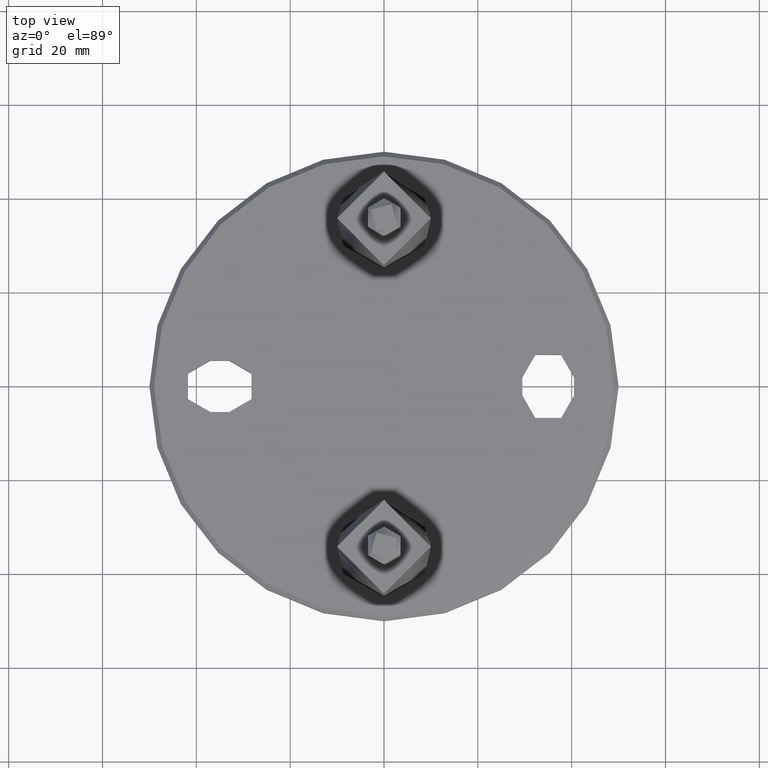
[diagram: clean part render]
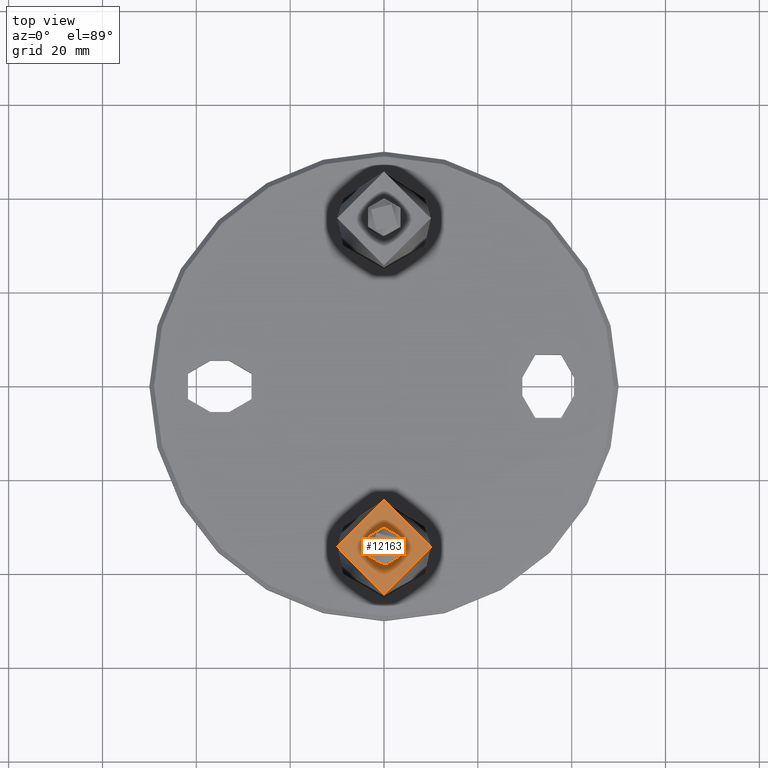
[diagram: same view with one face highlighted and labeled with its STEP entity id]
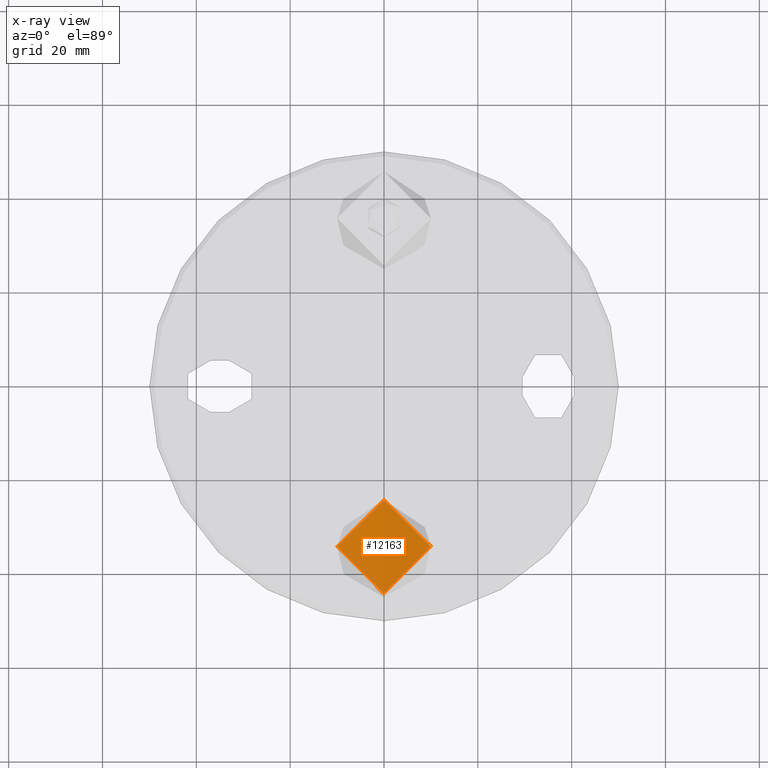
[diagram: x-ray of the same camera — body ghosted, the highlighted face saturated]
A machine part, top view. The second image highlights one B-rep face of the part: STEP entity #12163.
The next image is the same camera in x-ray: the body ghosted, the highlighted face saturated — about 0% of this face is hidden behind the body in this view.
In plain terms, the highlighted cylindrical surface (partial cylindrical patch) has radius 21.2 mm, axis along (0, 1, -0).
Its self-contained STEP definition (entity closure, byte-faithful):
#203 = ORIENTED_EDGE ( 'NONE', *, *, #15122, .T. ) ;
#516 = CARTESIAN_POINT ( 'NONE',  ( 9.982414581929930400, 46.99725035317056400, 0.6795817556389306400 ) ) ;
#568 = CARTESIAN_POINT ( 'NONE',  ( 8.964253897605766900, 46.48773758420086500, -4.443967780737021500 ) ) ;
#625 = CARTESIAN_POINT ( 'NONE',  ( 0.6710340642420658000, 44.50000000000002100, -10.00000000000000400 ) ) ;
#726 = CARTESIAN_POINT ( 'NONE',  ( 7.946700934037632900, 46.04542448166517200, 1.060978647405205000 ) ) ;
#911 = CARTESIAN_POINT ( 'NONE',  ( -0.6710340642420703500, 44.50000000000000000, -9.999999999999998200 ) ) ;
#964 = CARTESIAN_POINT ( 'NONE',  ( -9.870155520532206200, 46.93766143655276600, 1.639681426772311200 ) ) ;
#966 = CARTESIAN_POINT ( 'NONE',  ( 4.469110848030649800, 44.97431208322698400, -8.951756303271849900 ) ) ;
#990 = CARTESIAN_POINT ( 'NONE',  ( -5.839409913531705200, 45.31918769600405700, 5.474354043041676800 ) ) ;
#995 = CARTESIAN_POINT ( 'NONE',  ( 6.097048751048081500, 45.39396812799017800, 7.932912277434814600 ) ) ;
#1019 = CARTESIAN_POINT ( 'NONE',  ( -8.670077701673784900, 46.34999724163485300, 5.024729755145505900 ) ) ;
#1048 = CARTESIAN_POINT ( 'NONE',  ( 4.019930523539358100, 44.88329065571777900, 6.921638728661008600 ) ) ;
#1085 = CARTESIAN_POINT ( 'NONE',  ( -9.346966378711949000, 46.67124106123582500, -3.569254565059489300 ) ) ;
#1637 = VERTEX_POINT ( 'NONE', #9508 ) ;
#1643 = CARTESIAN_POINT ( 'NONE',  ( 5.300468791646417300, 45.17142248634212400, 8.485845364758796800 ) ) ;
#1807 = CARTESIAN_POINT ( 'NONE',  ( 8.954484395985863500, 46.48317448152611300, 4.463650138016776100 ) ) ;
#1962 = CARTESIAN_POINT ( 'NONE',  ( 6.924108717032224200, 45.66218820251172900, 4.015592442816007700 ) ) ;
#1971 = CARTESIAN_POINT ( 'NONE',  ( 9.483190860956497700, 46.73721560809785600, -3.239967857514311600 ) ) ;
#2124 = CARTESIAN_POINT ( 'NONE',  ( 7.948068961608544900, 46.04597323479185200, -1.053060681145291600 ) ) ;
#2173 = CARTESIAN_POINT ( 'NONE',  ( 2.080262128454891900, 44.60079738458542700, -7.729258207646523700 ) ) ;
#2189 = CARTESIAN_POINT ( 'NONE',  ( -9.932088329190991200, 46.96993190506123000, -1.337674638786005900 ) ) ;
#2218 = CARTESIAN_POINT ( 'NONE',  ( -7.740670532928314500, 45.96337466075911500, 2.087624345647437300 ) ) ;
#2228 = CARTESIAN_POINT ( 'NONE',  ( 3.238085567351746400, 44.73962003743160700, 9.484155180939842100 ) ) ;
#2254 = CARTESIAN_POINT ( 'NONE',  ( -4.469624339306767200, 44.97444407463622400, 8.951438951896889800 ) ) ;
#2258 = CARTESIAN_POINT ( 'NONE',  ( 1.301042606982605300E-015, 44.50000000000001400, -10.00000000000000200 ) ) ;
#2277 = CARTESIAN_POINT ( 'NONE',  ( 5.022853073952959800, 45.10151269576292100, 8.653159878084377300 ) ) ;
#2296 = CARTESIAN_POINT ( 'NONE',  ( 6.786908770510334100, 45.61514836500627700, -4.243320249564356500 ) ) ;
#2311 = CARTESIAN_POINT ( 'NONE',  ( -2.643370765987185200, 44.66305753939220600, 9.649892476246456900 ) ) ;
#2333 = CARTESIAN_POINT ( 'NONE',  ( -6.501648725235453300, 45.52100930370571800, 4.668596399855251100 ) ) ;
#2362 = CARTESIAN_POINT ( 'NONE',  ( -9.740840076068991500, 46.87020039986192200, 2.285729597577682800 ) ) ;
#2387 = CARTESIAN_POINT ( 'NONE',  ( 6.358058911530736000, 45.47360351489875500, 4.882921647729439500 ) ) ;
#2431 = CARTESIAN_POINT ( 'NONE',  ( 0.0000000000000000000, 65.69999999999998900, 15.00000000000000000 ) ) ;
#2452 = CARTESIAN_POINT ( 'NONE',  ( -5.285364833860087200, 45.16837107819286200, -6.011047975210184200 ) ) ;
#3081 = CARTESIAN_POINT ( 'NONE',  ( 4.170323546639157700, 44.91195116759663400, -9.094828785750630500 ) ) ;
#3134 = CARTESIAN_POINT ( 'NONE',  ( 3.263228641391706700, 44.74362555683444500, -9.475303443008348500 ) ) ;
#3186 = CARTESIAN_POINT ( 'NONE',  ( 7.538899342453330400, 45.87975883678201700, -6.602055655766884400 ) ) ;
#3254 = CARTESIAN_POINT ( 'NONE',  ( -4.467945790593070400, 44.96707144381373700, -8.970271105152134400 ) ) ;
#3287 = CARTESIAN_POINT ( 'NONE',  ( -3.564983628642337500, 44.79618061007140300, -7.180901118691163100 ) ) ;
#3346 = CARTESIAN_POINT ( 'NONE',  ( 7.791840223846911300, 45.98375370405052100, -1.832323710539754700 ) ) ;
#3393 = CARTESIAN_POINT ( 'NONE',  ( 6.923065522502464700, 45.66182623570400500, -4.017414146606949300 ) ) ;
#3429 = CARTESIAN_POINT ( 'NONE',  ( 0.5233955155464958800, 44.50482535184077200, 7.987240395986136200 ) ) ;
#3446 = CARTESIAN_POINT ( 'NONE',  ( 1.057376813885607200, 44.52014363093380900, -7.947037112781933900 ) ) ;
#3465 = CARTESIAN_POINT ( 'NONE',  ( 1.305867936509205900, 44.53763576834389000, 9.920004263371618300 ) ) ;
#3470 = CARTESIAN_POINT ( 'NONE',  ( 2.637974639928488700, 44.65473981049649400, -9.668325632801604300 ) ) ;
#3495 = CARTESIAN_POINT ( 'NONE',  ( 1.049801174281113500, 44.52437040543672000, 7.935229644027000300 ) ) ;
#3528 = CARTESIAN_POINT ( 'NONE',  ( -6.627858110228785900, 45.55692945934244200, 7.515623325812176100 ) ) ;
#3564 = CARTESIAN_POINT ( 'NONE',  ( 7.999846470075008000, 46.06731153197319600, -0.5296391970087568300 ) ) ;
#3579 = CARTESIAN_POINT ( 'NONE',  ( -8.977166742959017400, 46.49246610309258900, 4.454461449407234300 ) ) ;
#3613 = CARTESIAN_POINT ( 'NONE',  ( -6.024766308394668500, 45.37056871456503900, -5.288587148533993700 ) ) ;
#3664 = CARTESIAN_POINT ( 'NONE',  ( -7.947242598539991900, 46.04564437177190000, 1.057114368380220400 ) ) ;
#3776 = EDGE_LOOP ( 'NONE', ( #15254 ) ) ;
#4304 = CARTESIAN_POINT ( 'NONE',  ( 9.105824283226917600, 46.55467447853733600, -4.146207819050889800 ) ) ;
#4352 = CARTESIAN_POINT ( 'NONE',  ( 8.643691189815093900, 46.34139012169166000, 5.039202909953545800 ) ) ;
#4521 = CARTESIAN_POINT ( 'NONE',  ( -5.848381953352692600, 45.32072929997159600, -8.118014525222385200 ) ) ;
#4594 = CARTESIAN_POINT ( 'NONE',  ( 4.448730584124480600, 44.96993660368571700, 8.961865044067748100 ) ) ;
#4671 = CARTESIAN_POINT ( 'NONE',  ( 3.561652206488780800, 44.79555137439260900, -7.182747971165472500 ) ) ;
#4711 = CARTESIAN_POINT ( 'NONE',  ( 6.790161462787334100, 45.61625746323582600, 4.238002659787723800 ) ) ;
#4740 = CARTESIAN_POINT ( 'NONE',  ( -1.340954340740363700, 44.53227347118250600, 9.932095520693579300 ) ) ;
#4772 = CARTESIAN_POINT ( 'NONE',  ( 4.150656756408730000, 44.90798879209465600, 9.103880925181767800 ) ) ;
#4794 = CARTESIAN_POINT ( 'NONE',  ( -9.735572841129643600, 46.86747285120679200, -2.308150657904440200 ) ) ;
#4824 = CARTESIAN_POINT ( 'NONE',  ( -6.346805666809564700, 45.47160314627671300, 4.877102246928885200 ) ) ;
#4835 = FACE_BOUND ( 'NONE', #3776, .T. ) ;
#4841 = CARTESIAN_POINT ( 'NONE',  ( 4.874022891345005900, 45.06684368493757400, -6.349183181187184400 ) ) ;
#4860 = CARTESIAN_POINT ( 'NONE',  ( -3.270760802825266400, 44.75143248648965500, 9.455683876922680800 ) ) ;
#4901 = CARTESIAN_POINT ( 'NONE',  ( -6.354564512688107000, 45.47244755900175800, -4.888167589712392000 ) ) ;
#5407 = EDGE_CURVE ( 'NONE', #15256, #15256, #9135, .T. ) ;
#5564 = CARTESIAN_POINT ( 'NONE',  ( 7.948877540109214700, 46.04273951036299900, -6.101819572144875400 ) ) ;
#5674 = CARTESIAN_POINT ( 'NONE',  ( 9.472294849355286300, 46.73177138179068600, 3.270813786289182200 ) ) ;
#5726 = CARTESIAN_POINT ( 'NONE',  ( 9.864538830927537900, 46.93470091502101800, 1.673526740888290300 ) ) ;
#5767 = EDGE_LOOP ( 'NONE', ( #203 ) ) ;
#5786 = CARTESIAN_POINT ( 'NONE',  ( -6.110589595650704800, 45.39805380392230900, -7.922442904969484400 ) ) ;
#5886 = CARTESIAN_POINT ( 'NONE',  ( 7.483755059323406100, 45.86455460791448500, -2.839275379970025900 ) ) ;
#5931 = CARTESIAN_POINT ( 'NONE',  ( 4.878909776184770000E-016, 44.50000000000001400, -8.000000000000001800 ) ) ;
#6011 = CARTESIAN_POINT ( 'NONE',  ( -9.653127112434358300, 46.82491060101073500, -2.631725452114392900 ) ) ;
#6039 = CARTESIAN_POINT ( 'NONE',  ( 5.289902162564145800, 45.16699716640967900, 6.024181415992583100 ) ) ;
#6074 = CARTESIAN_POINT ( 'NONE',  ( -8.664137667471560900, 46.34728847207557600, -5.035304216957190900 ) ) ;
#6092 = DIRECTION ( 'NONE',  ( -1.000000000000000000, 0.0000000000000000000, 0.0000000000000000000 ) ) ;
#6103 = CARTESIAN_POINT ( 'NONE',  ( 2.593418853257765600, 44.65354927127494700, 7.586083449563222600 ) ) ;
#6136 = CARTESIAN_POINT ( 'NONE',  ( -9.468641170223662600, 46.73170042201368800, 3.233088247809586600 ) ) ;
#6219 = CARTESIAN_POINT ( 'NONE',  ( 6.029561497851136500, 45.37189978386175000, 5.283768992482768200 ) ) ;
#6673 = B_SPLINE_CURVE_WITH_KNOTS ( 'NONE', 3,
 ( #13466, #911, #12241, #8300, #13525, #10812, #8350, #3254, #12089, #4521, #5786, #13375, #14616, #7078, #15872, #12302, #8548, #6074, #7296, #1085, #9913, #6011, #4794, #2189, #11076, #7416, #14884, #16084, #964, #2362, #11198, #6136, #16192, #3579, #1019, #14832, #13627, #9853, #7356, #3528, #9793, #8672, #12421, #2254, #16138, #14944, #4860, #2311, #12366, #4740, #8613, #11020, #13577, #3465, #11138, #13681, #2228, #4772, #4594, #2277, #1643, #11538, #995, #10887, #9670, #8244, #11863, #13314, #4352, #1807, #14391, #5674, #10693, #5726, #10807, #516, #9485, #10748, #9538, #9382, #10637, #1971, #4304, #568, #15770, #6863, #5564, #3186, #14502, #15662, #8294, #11918, #966, #3081, #3134, #3470, #14561, #625, #2258 ),
 .UNSPECIFIED., .T., .F.,
 ( 4, 2, 2, 2, 2, 2, 2, 2, 2, 2, 2, 2, 2, 2, 2, 2, 2, 2, 2, 2, 2, 2, 2, 2, 2, 2, 2, 2, 2, 2, 2, 2, 2, 2, 2, 2, 2, 2, 1, 2, 2, 2, 2, 2, 2, 2, 2, 2, 2, 4 ),
 ( 0.0000000000000000000, 0.001982588497940418900, 0.002973882746910628600, 0.003965176995880837800, 0.005947765493821255400, 0.006939059742791460300, 0.007930353991761665200, 0.008921648240731869200, 0.009912942489702075000, 0.01189553098764248300, 0.01288682523661268400, 0.01387811948558288800, 0.01586070798352329600, 0.01685200223249350100, 0.01784329648146370700, 0.01883459073043391000, 0.01982588497940411200, 0.02180847347734452000, 0.02279976772631472600, 0.02379106197528492800, 0.02577365047322533300, 0.02676494472219554200, 0.02775623897116574800, 0.02874753322013595300, 0.02973882746910615600, 0.03172141596704657100, 0.03271271021601678000, 0.03370400446498698900, 0.03568659296292740100, 0.03667788721189760300, 0.03766918146086780500, 0.03866047570983800800, 0.03965176995880821000, 0.04163435845674862100, 0.04262565270571882400, 0.04361694695468902600, 0.04559953545262944400, 0.04659082970159964000, 0.04758212395056984900, 0.04857341819954005800, 0.04956471244851026100, 0.05154730094645067200, 0.05253859519542088100, 0.05352988944439109100, 0.05551247794233150200, 0.05749506644027191400, 0.05848636068924211600, 0.05947765493821231100, 0.06146024343615272300, 0.06344283193409312700 ),
 .UNSPECIFIED. ) ;
#6863 = CARTESIAN_POINT ( 'NONE',  ( 8.487868160873848200, 46.27233338483753800, -5.297198140837264400 ) ) ;
#7078 = CARTESIAN_POINT ( 'NONE',  ( -7.300951022269778400, 45.79537651172479000, -6.840990230692230300 ) ) ;
#7168 = CARTESIAN_POINT ( 'NONE',  ( 4.665340713526976700, 45.01853165201345800, -6.503982036825620500 ) ) ;
#7224 = CARTESIAN_POINT ( 'NONE',  ( -1.057863989960127900, 44.52012050116505300, -7.947104956248410600 ) ) ;
#7270 = CARTESIAN_POINT ( 'NONE',  ( -1.317400615505464300, 44.53936684260621300, 7.895236049593119500 ) ) ;
#7284 = CARTESIAN_POINT ( 'NONE',  ( 5.471947518298333300, 45.21746975478209400, -5.841669855936453700 ) ) ;
#7296 = CARTESIAN_POINT ( 'NONE',  ( -8.970256519379059800, 46.48926636190037000, -4.467206343612938100 ) ) ;
#7356 = CARTESIAN_POINT ( 'NONE',  ( -7.308550278609130800, 45.79816487585001300, 6.832888635214744400 ) ) ;
#7383 = CARTESIAN_POINT ( 'NONE',  ( 1.314571903349928100, 44.53919797751965600, 7.895687306099840300 ) ) ;
#7393 = CARTESIAN_POINT ( 'NONE',  ( -5.477004757607991400, 45.21883022749587900, -5.836879274041995000 ) ) ;
#7416 = CARTESIAN_POINT ( 'NONE',  ( -10.00062361897687800, 47.00701929166193300, 0.3122771294461828600 ) ) ;
#7446 = CARTESIAN_POINT ( 'NONE',  ( 4.243097550372780800, 44.92779020892788100, 6.787007380796166200 ) ) ;
#7508 = CARTESIAN_POINT ( 'NONE',  ( -8.000379710101087800, 46.06752881921929100, 0.5215719460668238900 ) ) ;
#7627 = CARTESIAN_POINT ( 'NONE',  ( -7.183268770184788800, 45.75291278382396600, -3.559674719447241600 ) ) ;
#7635 = FACE_OUTER_BOUND ( 'NONE', #5767, .T. ) ;
#8244 = CARTESIAN_POINT ( 'NONE',  ( 7.525093448978551300, 45.87456955929460600, 6.617394336226085200 ) ) ;
#8268 = CARTESIAN_POINT ( 'NONE',  ( 0.0000000000000000000, 44.50000000000000000, -8.000000000000000000 ) ) ;
#8294 = CARTESIAN_POINT ( 'NONE',  ( 5.321618406944567800, 45.17690687289609000, -8.472575861996764600 ) ) ;
#8300 = CARTESIAN_POINT ( 'NONE',  ( -2.297693411830911800, 44.62238692359608900, -9.738022964414092500 ) ) ;
#8336 = CARTESIAN_POINT ( 'NONE',  ( 7.739838232737581900, 45.96304738132010200, 2.090606504423533400 ) ) ;
#8350 = CARTESIAN_POINT ( 'NONE',  ( -3.562531639691297600, 44.79922047286038400, -9.349622673568161300 ) ) ;
#8548 = CARTESIAN_POINT ( 'NONE',  ( -8.121236675598366300, 46.11622620356573100, -5.843877768953392500 ) ) ;
#8576 = CARTESIAN_POINT ( 'NONE',  ( -7.947600105691981800, 46.04578602570084200, -1.055534364224025100 ) ) ;
#8595 = CARTESIAN_POINT ( 'NONE',  ( 7.726483602941185900, 45.95795706344749500, -2.090586408386796000 ) ) ;
#8613 = CARTESIAN_POINT ( 'NONE',  ( -0.6834819277264022600, 44.50069933452134300, 9.998517408036187600 ) ) ;
#8643 = CARTESIAN_POINT ( 'NONE',  ( -6.934640652798346000, 45.66395334187646400, 4.022396422649738000 ) ) ;
#8672 = CARTESIAN_POINT ( 'NONE',  ( -5.322760873410800300, 45.17717030646246500, 8.471968775020458900 ) ) ;
#8680 = CARTESIAN_POINT ( 'NONE',  ( -6.937978636682195200, 45.66506001166484900, -4.017352980255931300 ) ) ;
#8734 = AXIS2_PLACEMENT_3D ( 'NONE', #2431, #10052, #6092 ) ;
#9135 = B_SPLINE_CURVE_WITH_KNOTS ( 'NONE', 3,
 ( #5931, #12284, #7224, #14764, #11054, #9728, #11001, #3287, #12121, #13408, #12403, #2452, #7393, #3613, #4901, #8680, #7627, #13468, #13751, #13551, #12444, #8576, #11226, #7508, #3664, #2218, #11104, #13710, #8643, #2333, #4824, #14804, #990, #16056, #9943, #9820, #11046, #10006, #14967, #13652, #13779, #7270, #12394, #10990, #12501, #3429, #3495, #7383, #12272, #6103, #13606, #14911, #1048, #7446, #16216, #6039, #6219, #2387, #4711, #1962, #10799, #12075, #14605, #8336, #726, #10848, #3564, #2124, #3346, #8595, #12181, #5886, #12230, #13454, #3393, #2296, #9733, #11119, #7284, #12407, #4841, #7168, #14716, #4671, #13506, #16011, #2173, #11009, #3446, #12458, #13898 ),
 .UNSPECIFIED., .T., .F.,
 ( 4, 2, 2, 2, 2, 2, 2, 2, 2, 2, 2, 2, 2, 2, 2, 2, 2, 2, 2, 2, 2, 2, 1, 2, 2, 2, 2, 2, 2, 2, 2, 2, 2, 2, 2, 2, 2, 2, 2, 2, 2, 2, 2, 2, 2, 4 ),
 ( 0.0000000000000000000, 0.001577825287749400600, 0.002366737931624100600, 0.003155650575498800400, 0.004733475863248197800, 0.005522388507122898000, 0.006311301150997597300, 0.007889126438747002000, 0.009466951726496407700, 0.01025586437037111000, 0.01104477701424581300, 0.01262260230199521900, 0.01420042758974462300, 0.01577825287749403200, 0.01735607816524343400, 0.01814499080911814400, 0.01893390345299285000, 0.02051172874074225200, 0.02130064138461695800, 0.02208955402849166100, 0.02366737931624106700, 0.02445629196011577700, 0.02524520460399048300, 0.02603411724786518900, 0.02682302989173989200, 0.02840085517948930100, 0.02918976782336401100, 0.02997868046723871700, 0.03155650575498812600, 0.03313433104273752500, 0.03392324368661223100, 0.03471215633048693000, 0.03628998161823633600, 0.03786780690598573500, 0.03944563219373513300, 0.04023454483760984000, 0.04102345748148453200, 0.04181237012535923800, 0.04260128276923393800, 0.04417910805698334300, 0.04496802070085805000, 0.04575693334473274200, 0.04733475863248214100, 0.04812367127635684700, 0.04891258392023154600, 0.05049040920798095200 ),
 .UNSPECIFIED. ) ;
#9382 = CARTESIAN_POINT ( 'NONE',  ( 9.871121741946090800, 46.93816734879776200, -1.634491064771979900 ) ) ;
#9485 = CARTESIAN_POINT ( 'NONE',  ( 10.01631626969540700, 47.01544189799530200, 0.01857522702975627000 ) ) ;
#9508 = CARTESIAN_POINT ( 'NONE',  ( 0.0000000000000000000, 44.50000000000000000, -10.00000000000000000 ) ) ;
#9538 = CARTESIAN_POINT ( 'NONE',  ( 9.920380355499624200, 46.96427509218953100, -1.302347838749822200 ) ) ;
#9670 = CARTESIAN_POINT ( 'NONE',  ( 6.839951502429692600, 45.63227107173843700, 7.302006453616297900 ) ) ;
#9728 = CARTESIAN_POINT ( 'NONE',  ( -2.590155204408461000, 44.65728862100918000, -7.573696196353273200 ) ) ;
#9733 = CARTESIAN_POINT ( 'NONE',  ( 6.351137653802894100, 45.47139070676863100, -4.892304170921824500 ) ) ;
#9793 = CARTESIAN_POINT ( 'NONE',  ( -6.132600853380590200, 45.39865781395347000, 7.925614155057904700 ) ) ;
#9820 = CARTESIAN_POINT ( 'NONE',  ( -4.242147281910837900, 44.92758998918834100, 6.787627049505395900 ) ) ;
#9853 = CARTESIAN_POINT ( 'NONE',  ( -7.524993111475469100, 45.87921911988964000, 6.593921742419152700 ) ) ;
#9913 = CARTESIAN_POINT ( 'NONE',  ( -9.458677917299706200, 46.72672208274386200, -3.262246765790242500 ) ) ;
#9943 = CARTESIAN_POINT ( 'NONE',  ( -4.890256824876025200, 45.06699941691660900, 6.352650335502247900 ) ) ;
#10006 = CARTESIAN_POINT ( 'NONE',  ( -3.554352590122448400, 44.79876278145621200, 7.171844883690545700 ) ) ;
#10052 = DIRECTION ( 'NONE',  ( 0.0000000000000000000, 0.0000000000000000000, -1.000000000000000000 ) ) ;
#10637 = CARTESIAN_POINT ( 'NONE',  ( 9.675507312051708600, 46.83611403346090200, -2.612849057063030100 ) ) ;
#10693 = CARTESIAN_POINT ( 'NONE',  ( 9.665881770994378300, 46.83116235769887200, 2.647640834127706500 ) ) ;
#10748 = CARTESIAN_POINT ( 'NONE',  ( 9.984883444086820600, 46.99857126241598600, -0.6419960271529263600 ) ) ;
#10799 = CARTESIAN_POINT ( 'NONE',  ( 7.171366734196467100, 45.74934381228273100, 3.555244486071665200 ) ) ;
#10807 = CARTESIAN_POINT ( 'NONE',  ( 9.915274281338115600, 46.96156940500775800, 1.340808776060016700 ) ) ;
#10812 = CARTESIAN_POINT ( 'NONE',  ( -3.250913155897737500, 44.74829779331341200, -9.462627308533422300 ) ) ;
#10848 = CARTESIAN_POINT ( 'NONE',  ( 8.000152854738695800, 46.06743637911287700, 0.5249909757280097900 ) ) ;
#10887 = CARTESIAN_POINT ( 'NONE',  ( 6.598063982832348600, 45.55119146107674800, 7.521346445456655000 ) ) ;
#10990 = CARTESIAN_POINT ( 'NONE',  ( -0.5282184188567299300, 44.50495233390586900, 7.986903893498826800 ) ) ;
#11001 = CARTESIAN_POINT ( 'NONE',  ( -2.839801452535266600, 44.68964014944084100, -7.483591383647665300 ) ) ;
#11009 = CARTESIAN_POINT ( 'NONE',  ( 1.826500185600148600, 44.57726373176981800, -7.793090415337274200 ) ) ;
#11020 = CARTESIAN_POINT ( 'NONE',  ( 0.3086700263047489300, 44.49966752907906200, 10.00070483970724100 ) ) ;
#11046 = CARTESIAN_POINT ( 'NONE',  ( -4.016441833377685500, 44.88261941069809100, 6.923653397572856200 ) ) ;
#11054 = CARTESIAN_POINT ( 'NONE',  ( -2.084899951848677700, 44.60123704211037700, -7.728063809801364300 ) ) ;
#11076 = CARTESIAN_POINT ( 'NONE',  ( -9.998696486463018100, 47.00598837342454300, -0.6826621914575061700 ) ) ;
#11104 = CARTESIAN_POINT ( 'NONE',  ( -7.587914031988928400, 45.90327089284397000, 2.588894941886095600 ) ) ;
#11119 = CARTESIAN_POINT ( 'NONE',  ( 6.022468597644668800, 45.36985264324201200, -5.291421112088453800 ) ) ;
#11138 = CARTESIAN_POINT ( 'NONE',  ( 1.636967487498487900, 44.56078460780309300, 9.870649787743909400 ) ) ;
#11198 = CARTESIAN_POINT ( 'NONE',  ( -9.660501931672069300, 46.82869223082698800, 2.604367035718911700 ) ) ;
#11226 = CARTESIAN_POINT ( 'NONE',  ( -7.999616096595611100, 46.06721765828719100, -0.5331558006900803900 ) ) ;
#11538 = CARTESIAN_POINT ( 'NONE',  ( 5.837567185155434000, 45.31764798890291200, 8.125721526400743900 ) ) ;
#11863 = CARTESIAN_POINT ( 'NONE',  ( 7.933274043123658400, 46.03640577851175000, 6.122131788245915200 ) ) ;
#11918 = CARTESIAN_POINT ( 'NONE',  ( 5.044287161887472100, 45.10674240378966000, -8.640721018154085400 ) ) ;
#12075 = CARTESIAN_POINT ( 'NONE',  ( 7.285072458491114000, 45.79072395564602300, 3.316092605712492000 ) ) ;
#12089 = CARTESIAN_POINT ( 'NONE',  ( -5.038782628365570600, 45.09991134549583300, -8.662193419693037900 ) ) ;
#12121 = CARTESIAN_POINT ( 'NONE',  ( -4.022732067198237600, 44.88044726604563600, -6.934654044351272100 ) ) ;
#12163 = ADVANCED_FACE ( 'NONE', ( #4835, #7635 ), #13145, .F. ) ;
#12181 = CARTESIAN_POINT ( 'NONE',  ( 7.572577428721422700, 45.89841220353225300, -2.593293559061421700 ) ) ;
#12230 = CARTESIAN_POINT ( 'NONE',  ( 7.282848922320297900, 45.78991222357333200, -3.320871278130276900 ) ) ;
#12241 = CARTESIAN_POINT ( 'NONE',  ( -1.329035019492094800, 44.53176110370962700, -9.933157151574398800 ) ) ;
#12272 = CARTESIAN_POINT ( 'NONE',  ( 2.092658154046794600, 44.59712465219394100, 7.739553678955541500 ) ) ;
#12284 = CARTESIAN_POINT ( 'NONE',  ( -0.5338604161448098400, 44.50000000000000700, -8.000000000000001800 ) ) ;
#12302 = CARTESIAN_POINT ( 'NONE',  ( -7.926479567013464200, 46.03634569979941900, -6.105312912600720000 ) ) ;
#12366 = CARTESIAN_POINT ( 'NONE',  ( -2.321123980530118500, 44.62489419474491800, 9.732602604701428500 ) ) ;
#12394 = CARTESIAN_POINT ( 'NONE',  ( -1.053428681918235200, 44.52455796062616900, 7.934729359167859800 ) ) ;
#12403 = CARTESIAN_POINT ( 'NONE',  ( -4.883360033972841100, 45.06906055487561200, -6.341969249837155200 ) ) ;
#12407 = CARTESIAN_POINT ( 'NONE',  ( 5.277804704357713200, 45.16641735668576300, -6.017724130955569400 ) ) ;
#12421 = CARTESIAN_POINT ( 'NONE',  ( -5.041889264817294600, 45.10617658638335600, 8.642057260015144800 ) ) ;
#12444 = CARTESIAN_POINT ( 'NONE',  ( -7.791955934262214000, 45.98380002851972400, -1.831678950315554400 ) ) ;
#12458 = CARTESIAN_POINT ( 'NONE',  ( 0.5338604161448108300, 44.50000000000001400, -8.000000000000001800 ) ) ;
#12501 = CARTESIAN_POINT ( 'NONE',  ( -0.002708335507318968200, 44.49511146623307700, 8.012927036125603300 ) ) ;
#13145 = CYLINDRICAL_SURFACE ( 'NONE', #8734, 21.19999999999999200 ) ;
#13314 = CARTESIAN_POINT ( 'NONE',  ( 8.474600290213574600, 46.26653418433105700, 5.318409874210495000 ) ) ;
#13375 = CARTESIAN_POINT ( 'NONE',  ( -6.609289752536050800, 45.55488611295705000, -7.511437662391789300 ) ) ;
#13408 = CARTESIAN_POINT ( 'NONE',  ( -4.672224535631307200, 45.02007361666301900, -6.499097467223464300 ) ) ;
#13454 = CARTESIAN_POINT ( 'NONE',  ( 7.170764763285532700, 45.74912591522354400, -3.556484973093877700 ) ) ;
#13466 = CARTESIAN_POINT ( 'NONE',  ( 1.301042606982605300E-015, 44.50000000000001400, -10.00000000000000200 ) ) ;
#13468 = CARTESIAN_POINT ( 'NONE',  ( -7.483653766154033900, 45.86451825725073000, -2.839469121433534100 ) ) ;
#13506 = CARTESIAN_POINT ( 'NONE',  ( 2.832554385518804000, 44.68864663216004400, -7.486383931337960500 ) ) ;
#13525 = CARTESIAN_POINT ( 'NONE',  ( -2.617500944891943500, 44.65977779327523900, -9.657040992502890800 ) ) ;
#13551 = CARTESIAN_POINT ( 'NONE',  ( -7.726537169543098200, 45.95797758627133300, -2.090428715184010000 ) ) ;
#13577 = CARTESIAN_POINT ( 'NONE',  ( 0.6403841539655663600, 44.50705638481922900, 9.985073048719455000 ) ) ;
#13606 = CARTESIAN_POINT ( 'NONE',  ( 3.318830784653905600, 44.75996443104489900, 7.283816519234682700 ) ) ;
#13627 = CARTESIAN_POINT ( 'NONE',  ( -7.936704401603066100, 46.04045780627950500, 6.092130047403443900 ) ) ;
#13652 = CARTESIAN_POINT ( 'NONE',  ( -2.596980760270735500, 44.65404838226278600, 7.584675655422323400 ) ) ;
#13681 = CARTESIAN_POINT ( 'NONE',  ( 2.609920523246683600, 44.65118353271086000, 9.676046403981303000 ) ) ;
#13710 = CARTESIAN_POINT ( 'NONE',  ( -7.181815642022718800, 45.75235736276158600, 3.563753703747738000 ) ) ;
#13751 = CARTESIAN_POINT ( 'NONE',  ( -7.572433846019352500, 45.89835685443867400, -2.593745263756161500 ) ) ;
#13779 = CARTESIAN_POINT ( 'NONE',  ( -2.097192357331461000, 44.59754648789720500, 7.738408806625883200 ) ) ;
#13898 = CARTESIAN_POINT ( 'NONE',  ( 4.878909776184770000E-016, 44.50000000000001400, -8.000000000000001800 ) ) ;
#14391 = CARTESIAN_POINT ( 'NONE',  ( 9.094906581114150500, 46.54948588321320100, 4.169930744656558600 ) ) ;
#14502 = CARTESIAN_POINT ( 'NONE',  ( 6.621219789586844800, 45.55461810831705800, -7.522073562221411400 ) ) ;
#14561 = CARTESIAN_POINT ( 'NONE',  ( 1.344662000693792600, 44.53271933505162400, -9.931128578700638700 ) ) ;
#14605 = CARTESIAN_POINT ( 'NONE',  ( 7.587329852579181000, 45.90306490763855200, 2.589870515811190100 ) ) ;
#14616 = CARTESIAN_POINT ( 'NONE',  ( -6.847198858430585000, 45.63476165522357800, -7.295128577284672600 ) ) ;
#14716 = CARTESIAN_POINT ( 'NONE',  ( 4.019131361349426600, 44.87979992631039000, -6.936521342487770500 ) ) ;
#14764 = CARTESIAN_POINT ( 'NONE',  ( -1.829899526875574000, 44.57754605465673600, -7.792326743230234800 ) ) ;
#14804 = CARTESIAN_POINT ( 'NONE',  ( -6.015549165441310500, 45.37063331822343300, 5.280268623602693400 ) ) ;
#14832 = CARTESIAN_POINT ( 'NONE',  ( -8.130565604776343500, 46.12010938559979700, 5.830818301298223500 ) ) ;
#14884 = CARTESIAN_POINT ( 'NONE',  ( -9.984543149312616000, 46.99838857378518500, 0.6482319937424355600 ) ) ;
#14911 = CARTESIAN_POINT ( 'NONE',  ( 3.557478729552174400, 44.79929248979370700, 7.170304679228578100 ) ) ;
#14944 = CARTESIAN_POINT ( 'NONE',  ( -3.577317506686148000, 44.80177668974654600, 9.343902856696461300 ) ) ;
#14967 = CARTESIAN_POINT ( 'NONE',  ( -3.318550089879458200, 44.75993499431535800, 7.283895164522491900 ) ) ;
#15122 = EDGE_CURVE ( 'NONE', #1637, #1637, #6673, .T. ) ;
#15254 = ORIENTED_EDGE ( 'NONE', *, *, #5407, .F. ) ;
#15256 = VERTEX_POINT ( 'NONE', #8268 ) ;
#15662 = CARTESIAN_POINT ( 'NONE',  ( 6.124496373301692400, 45.39634416995156800, -7.931405991317072700 ) ) ;
#15770 = CARTESIAN_POINT ( 'NONE',  ( 8.655133622111812000, 46.34651098489842300, -5.019497939073055200 ) ) ;
#15872 = CARTESIAN_POINT ( 'NONE',  ( -7.516793179015194500, 45.87612048392171000, -6.603161696563376800 ) ) ;
#16011 = CARTESIAN_POINT ( 'NONE',  ( 2.582534745200882200, 44.65637018432345000, -7.576241631137765600 ) ) ;
#16056 = CARTESIAN_POINT ( 'NONE',  ( -5.289170678200465900, 45.16686709796274400, 6.024426515788947600 ) ) ;
#16084 = CARTESIAN_POINT ( 'NONE',  ( -9.919135567911885300, 46.96361503856736200, 1.312271390979043800 ) ) ;
#16138 = CARTESIAN_POINT ( 'NONE',  ( -4.176749845393708000, 44.91328071104373300, 9.091781006383024900 ) ) ;
#16192 = CARTESIAN_POINT ( 'NONE',  ( -9.356429260281085900, 46.67588499350652900, 3.544738196417629900 ) ) ;
#16216 = CARTESIAN_POINT ( 'NONE',  ( 4.889511439851941300, 45.06684746373633700, 6.353114347735414400 ) ) ;